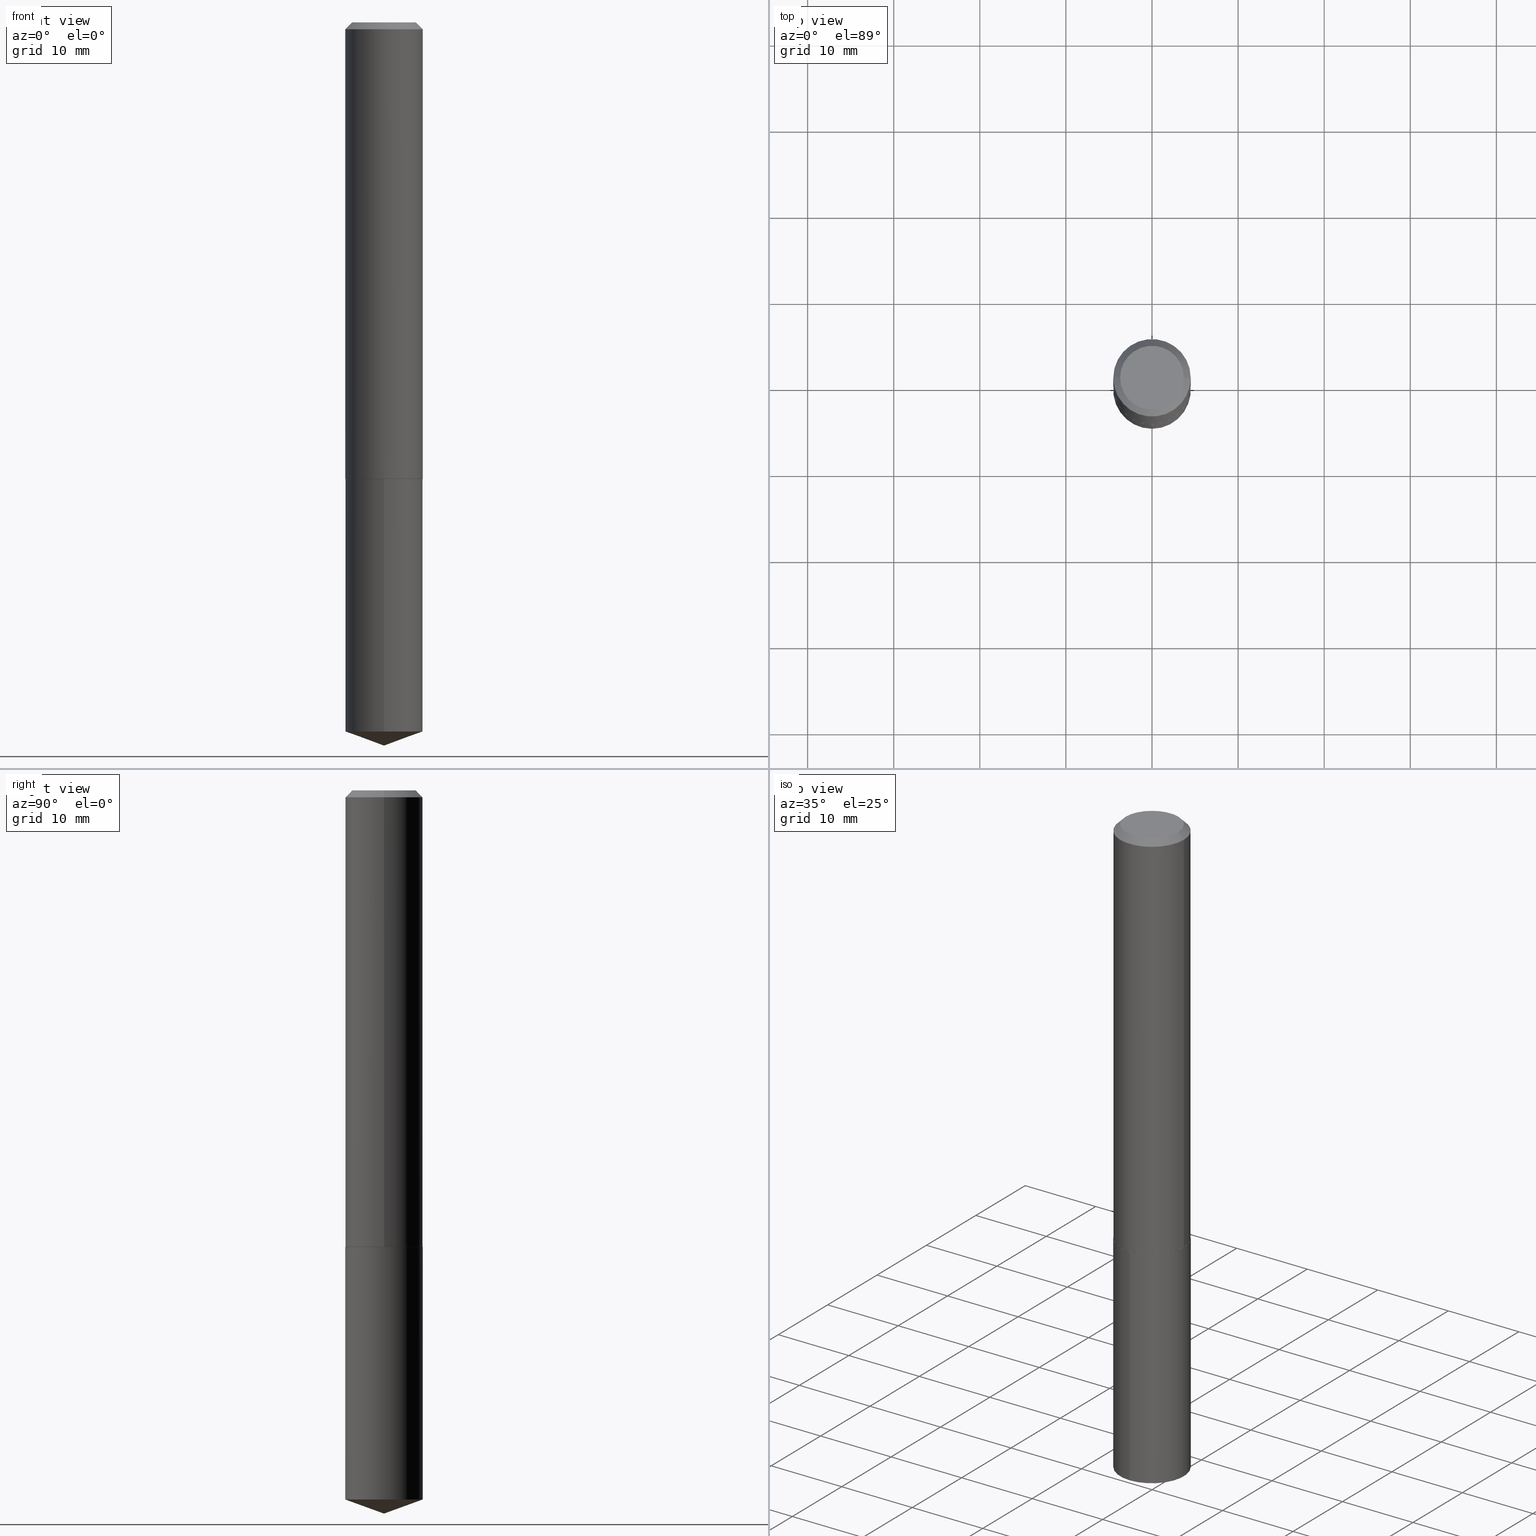
[diagram: canonical four-view strip — front | top / right | iso, engineering-drawing reading convention]
A machine part, canonical four-view strip (front | top / right | iso — engineering-drawing reading convention). The complete STEP part file that produces these views, byte-faithful:
ISO-10303-21;
HEADER;
FILE_DESCRIPTION (( 'STEP AP203' ),
    '1' );
FILE_NAME ('66032.STEP',
    '2024-04-23T12:34:46',
    ( '' ),
    ( '' ),
    'SwSTEP 2.0',
    'SolidWorks 2023',
    '' );
FILE_SCHEMA (( 'CONFIG_CONTROL_DESIGN' ));
ENDSEC;

DATA;
#1 = APPROVAL_STATUS ( 'not_yet_approved' ) ;
#2 = PERSON_AND_ORGANIZATION_ROLE ( 'classification_officer' ) ;
#3 = CC_DESIGN_PERSON_AND_ORGANIZATION_ASSIGNMENT ( #327, #268, ( #77 ) ) ;
#4 = CIRCLE ( 'NONE', #102, 0.1771500000000000019 ) ;
#5 = ORIENTED_EDGE ( 'NONE', *, *, #134, .T. ) ;
#6 = EDGE_LOOP ( 'NONE', ( #118, #58, #249, #326 ) ) ;
#7 = ADVANCED_BREP_SHAPE_REPRESENTATION ( '66032', ( #373, #106, #78 ), #237 ) ;
#8 = DIRECTION ( 'NONE',  ( -0.7071067811865454633, 2.468850131082235367E-15, -0.7071067811865495711 ) ) ;
#9 = ORIENTED_EDGE ( 'NONE', *, *, #333, .F. ) ;
#10 = ORIENTED_EDGE ( 'NONE', *, *, #264, .F. ) ;
#11 = EDGE_CURVE ( 'NONE', #368, #219, #149, .T. ) ;
#12 = CARTESIAN_POINT ( 'NONE',  ( 5.101492476582815716E-29, -7.283579220960688279E-15, -2.086100000000000954 ) ) ;
#13 = DATE_AND_TIME ( #189, #242 ) ;
#14 = DIRECTION ( 'NONE',  ( -2.445468806185136597E-29, 3.491481338843145583E-15, 1.000000000000000000 ) ) ;
#15 = AXIS2_PLACEMENT_3D ( 'NONE', #224, #127, #377 ) ;
#16 = DIRECTION ( 'NONE',  ( 1.000000000000000000, 0.000000000000000000, 0.000000000000000000 ) ) ;
#17 = CARTESIAN_POINT ( 'NONE',  ( 5.102715210985907397E-29, -7.285324961630108994E-15, -2.086600000000000676 ) ) ;
#18 = APPLICATION_PROTOCOL_DEFINITION ( 'international standard', 'config_control_design', 1994, #284 ) ;
#19 = DIRECTION ( 'NONE',  ( -2.445468806185136597E-29, 3.491481338843145583E-15, 1.000000000000000000 ) ) ;
#20 = LINE ( 'NONE', #349, #279 ) ;
#21 = DIRECTION ( 'NONE',  ( -2.445771156139322232E-29, 3.491048356500061313E-15, 1.000000000000000000 ) ) ;
#22 = AXIS2_PLACEMENT_3D ( 'NONE', #12, #14, #378 ) ;
#23 = CARTESIAN_POINT ( 'NONE',  ( -1.237031838352043113E-15, -0.1771500000000113817, -3.242622672999742051 ) ) ;
#24 = DATE_AND_TIME ( #330, #111 ) ;
#25 = EDGE_CURVE ( 'NONE', #243, #303, #69, .T. ) ;
#26 = CARTESIAN_POINT ( 'NONE',  ( 0.000000000000000000, 0.000000000000000000, 0.000000000000000000 ) ) ;
#27 = DIRECTION ( 'NONE',  ( 1.000000000000000000, -6.982962677686263555E-15, 0.000000000000000000 ) ) ;
#28 = AXIS2_PLACEMENT_3D ( 'NONE', #289, #225, #131 ) ;
#29 = CC_DESIGN_APPROVAL ( #214, ( #77 ) ) ;
#30 = EDGE_CURVE ( 'NONE', #334, #215, #339, .T. ) ;
#31 = DATE_AND_TIME ( #324, #306 ) ;
#32 = VERTEX_POINT ( 'NONE', #309 ) ;
#33 = ORIENTED_EDGE ( 'NONE', *, *, #30, .F. ) ;
#34 = ORIENTED_EDGE ( 'NONE', *, *, #258, .F. ) ;
#35 = EDGE_LOOP ( 'NONE', ( #178, #300, #34, #236 ) ) ;
#36 = ORIENTED_EDGE ( 'NONE', *, *, #244, .T. ) ;
#37 = CIRCLE ( 'NONE', #185, 0.1459000000000000019 ) ;
#38 = DIRECTION ( 'NONE',  ( 0.7071067811869580222, -2.468850131086556747E-15, 0.7071067811861370123 ) ) ;
#39 = PERSON_AND_ORGANIZATION ( #91, #174 ) ;
#40 = LINE ( 'NONE', #158, #247 ) ;
#41 = DIRECTION ( 'NONE',  ( -2.445771156139322232E-29, 3.491048356500061313E-15, 1.000000000000000000 ) ) ;
#42 = CARTESIAN_POINT ( 'NONE',  ( 0.1771500000000000019, -1.346140630190971297E-15, -0.03125000000000019429 ) ) ;
#43 = FACE_OUTER_BOUND ( 'NONE', #250, .T. ) ;
#44 = CARTESIAN_POINT ( 'NONE',  ( -0.1766500000000002790, -6.027501991735779424E-15, -2.086600000000000232 ) ) ;
#45 = DATE_AND_TIME ( #233, #248 ) ;
#46 = VECTOR ( 'NONE', #103, 39.37007874015747433 ) ;
#47 = DIRECTION ( 'NONE',  ( -2.445771156139322232E-29, 3.491048356500061313E-15, 1.000000000000000000 ) ) ;
#48 = VERTEX_POINT ( 'NONE', #66 ) ;
#49 = CARTESIAN_POINT ( 'NONE',  ( -0.1771500000000001129, 1.258726456399018282E-15, -8.713893512386570931E-30 ) ) ;
#50 = COORDINATED_UNIVERSAL_TIME_OFFSET ( 5, 0, .BEHIND. ) ;
#51 = COORDINATED_UNIVERSAL_TIME_OFFSET ( 5, 0, .BEHIND. ) ;
#52 = AXIS2_PLACEMENT_3D ( 'NONE', #341, #133, #156 ) ;
#53 = ORIENTED_EDGE ( 'NONE', *, *, #55, .T. ) ;
#54 = ORIENTED_EDGE ( 'NONE', *, *, #97, .F. ) ;
#55 = EDGE_CURVE ( 'NONE', #123, #203, #342, .T. ) ;
#56 = VECTOR ( 'NONE', #8, 39.37007874015748143 ) ;
#57 = CIRCLE ( 'NONE', #186, 0.1771500000000000019 ) ;
#58 = ORIENTED_EDGE ( 'NONE', *, *, #375, .T. ) ;
#59 = CARTESIAN_POINT ( 'NONE',  ( 8.087148023639544931E-29, -1.154705294169551217E-14, -3.307100000000000151 ) ) ;
#60 = VERTEX_POINT ( 'NONE', #42 ) ;
#61 = PRODUCT_DEFINITION ( 'UNKNOWN', '', #77, #206 ) ;
#62 = DIRECTION ( 'NONE',  ( -2.445771156139322512E-29, 3.491048356500061707E-15, 1.000000000000000000 ) ) ;
#63 = PERSON_AND_ORGANIZATION_ROLE ( 'design_owner' ) ;
#64 = DIRECTION ( 'NONE',  ( -2.445771156139322232E-29, 3.491048356500061313E-15, 1.000000000000000000 ) ) ;
#65 = DIRECTION ( 'NONE',  ( -2.445771156139322512E-29, 3.491048356500061707E-15, 1.000000000000000000 ) ) ;
#66 = CARTESIAN_POINT ( 'NONE',  ( 1.258726456399097168E-15, 0.1771499999999887054, -3.242622672999742939 ) ) ;
#67 = DIRECTION ( 'NONE',  ( 2.445468806185136597E-29, -3.491481338843145583E-15, -1.000000000000000000 ) ) ;
#68 = DIRECTION ( 'NONE',  ( -1.000000000000000000, 6.982962677686266711E-15, 0.000000000000000000 ) ) ;
#69 = CIRCLE ( 'NONE', #167, 0.1766500000000002790 ) ;
#70 = APPROVAL_DATE_TIME ( #13, #251 ) ;
#71 = DIRECTION ( 'NONE',  ( -2.445771156139322232E-29, 3.491048356500061313E-15, 1.000000000000000000 ) ) ;
#72 = DIRECTION ( 'NONE',  ( -2.445468806185136597E-29, 3.491481338843145583E-15, 1.000000000000000000 ) ) ;
#73 = CARTESIAN_POINT ( 'NONE',  ( 5.101492476582815716E-29, -7.283579220960688279E-15, -2.086100000000000954 ) ) ;
#74 = ADVANCED_FACE ( 'NONE', ( #192 ), #92, .F. ) ;
#75 = DIRECTION ( 'NONE',  ( 1.000000000000000000, -6.982962677686266711E-15, 4.876176775795935793E-29 ) ) ;
#76 = CIRCLE ( 'NONE', #370, 0.1459000000000000019 ) ;
#77 = PRODUCT_DEFINITION_FORMATION_WITH_SPECIFIED_SOURCE ( 'ANY', '', #200, .NOT_KNOWN. ) ;
#78 = AXIS2_PLACEMENT_3D ( 'NONE', #344, #287, #16 ) ;
#79 = PLANE ( 'NONE',  #261 ) ;
#80 = ORIENTED_EDGE ( 'NONE', *, *, #11, .T. ) ;
#81 = PERSON_AND_ORGANIZATION ( #91, #174 ) ;
#82 = DATE_TIME_ROLE ( 'creation_date' ) ;
#83 = VECTOR ( 'NONE', #234, 39.37007874015748143 ) ;
#84 = VERTEX_POINT ( 'NONE', #196 ) ;
#85 = ADVANCED_FACE ( 'NONE', ( #43 ), #286, .T. ) ;
#86 = ORIENTED_EDGE ( 'NONE', *, *, #258, .T. ) ;
#87 = ORIENTED_EDGE ( 'NONE', *, *, #97, .T. ) ;
#88 = DIRECTION ( 'NONE',  ( 1.000000000000000000, -6.982962677686264344E-15, 0.000000000000000000 ) ) ;
#89 = ADVANCED_FACE ( 'NONE', ( #125 ), #374, .T. ) ;
#90 = ORIENTED_EDGE ( 'NONE', *, *, #188, .F. ) ;
#91 = PERSON ( 'UNSPECIFIED', 'UNSPECIFIED', 'UNSPECIFIED', ('UNSPECIFIED'), ('UNSPECIFIED'), ('UNSPECIFIED') ) ;
#92 = PLANE ( 'NONE',  #359 ) ;
#93 = DIRECTION ( 'NONE',  ( -2.445468806185136597E-29, 3.491481338843145583E-15, 1.000000000000000000 ) ) ;
#94 = CONICAL_SURFACE ( 'NONE', #122, 0.1771500000000000019, 0.7853981633974453924 ) ;
#95 = CARTESIAN_POINT ( 'NONE',  ( 7.642090019328598283E-31, -1.091087918388489651E-16, -0.03125000000000019429 ) ) ;
#96 = FACE_OUTER_BOUND ( 'NONE', #35, .T. ) ;
#97 = EDGE_CURVE ( 'NONE', #84, #60, #252, .T. ) ;
#98 = CARTESIAN_POINT ( 'NONE',  ( 7.642090019328598283E-31, -1.091087918388489651E-16, -0.03125000000000019429 ) ) ;
#99 = CARTESIAN_POINT ( 'NONE',  ( 5.102715210985907397E-29, -7.285324961630108994E-15, -2.086600000000000676 ) ) ;
#100 = LENGTH_MEASURE_WITH_UNIT ( LENGTH_MEASURE( 0.02539999999999999897 ), #283 );
#101 = CARTESIAN_POINT ( 'NONE',  ( 0.1771500000000001129, -1.237031838352122986E-15, 8.638147158322505565E-30 ) ) ;
#102 = AXIS2_PLACEMENT_3D ( 'NONE', #99, #71, #199 ) ;
#103 = DIRECTION ( 'NONE',  ( 6.676917655467966551E-15, 0.9396926207859094271, 0.3420201433256662149 ) ) ;
#104 = EDGE_CURVE ( 'NONE', #303, #32, #376, .T. ) ;
#105 = FACE_OUTER_BOUND ( 'NONE', #179, .T. ) ;
#106 = MANIFOLD_SOLID_BREP ( 'Body-Move/Copy2[2]', #144 ) ;
#107 = DIRECTION ( 'NONE',  ( 1.000000000000000000, -6.982962677686263555E-15, 0.000000000000000000 ) ) ;
#108 = CALENDAR_DATE ( 2024, 23, 4 ) ;
#109 = CARTESIAN_POINT ( 'NONE',  ( -1.474956506360344439E-47, 2.105846987104261168E-33, 6.031385485800719294E-19 ) ) ;
#110 = VECTOR ( 'NONE', #221, 39.37007874015748143 ) ;
#111 = LOCAL_TIME ( 8, 34, 46.00000000000000000, #175 ) ;
#112 = ORIENTED_EDGE ( 'NONE', *, *, #113, .T. ) ;
#113 = EDGE_CURVE ( 'NONE', #151, #368, #76, .T. ) ;
#114 = PERSON_AND_ORGANIZATION_ROLE ( 'creator' ) ;
#115 = AXIS2_PLACEMENT_3D ( 'NONE', #73, #165, #27 ) ;
#116 = ADVANCED_FACE ( 'NONE', ( #380 ), #382, .T. ) ;
#117 = APPROVAL_PERSON_ORGANIZATION ( #132, #251, #228 ) ;
#118 = ORIENTED_EDGE ( 'NONE', *, *, #113, .F. ) ;
#119 = ORIENTED_EDGE ( 'NONE', *, *, #55, .F. ) ;
#120 = ORIENTED_EDGE ( 'NONE', *, *, #371, .F. ) ;
#121 = CIRCLE ( 'NONE', #28, 0.1771500000000000019 ) ;
#122 = AXIS2_PLACEMENT_3D ( 'NONE', #95, #67, #381 ) ;
#123 = VERTEX_POINT ( 'NONE', #129 ) ;
#124 = EDGE_LOOP ( 'NONE', ( #33, #275, #120 ) ) ;
#125 = FACE_OUTER_BOUND ( 'NONE', #335, .T. ) ;
#126 = DIMENSIONAL_EXPONENTS ( 1.000000000000000000, 0.000000000000000000, 0.000000000000000000, 0.000000000000000000, 0.000000000000000000, 0.000000000000000000, 0.000000000000000000 ) ;
#127 = DIRECTION ( 'NONE',  ( -2.445771156139322232E-29, 3.491048356500061313E-15, 1.000000000000000000 ) ) ;
#128 = EDGE_CURVE ( 'NONE', #48, #215, #157, .T. ) ;
#129 = CARTESIAN_POINT ( 'NONE',  ( -1.237031838352071118E-15, -0.1771500000000073016, -2.086600000000000232 ) ) ;
#130 = APPROVAL_PERSON_ORGANIZATION ( #177, #214, #207 ) ;
#131 = DIRECTION ( 'NONE',  ( 1.000000000000000000, -6.982962677686266711E-15, 0.000000000000000000 ) ) ;
#132 = PERSON_AND_ORGANIZATION ( #91, #174 ) ;
#133 = DIRECTION ( 'NONE',  ( -2.445771156139322232E-29, 3.491048356500061313E-15, 1.000000000000000000 ) ) ;
#134 = EDGE_CURVE ( 'NONE', #48, #203, #223, .T. ) ;
#135 = LINE ( 'NONE', #347, #343 ) ;
#136 = DIRECTION ( 'NONE',  ( -6.982962677686265922E-15, -1.000000000000000000, 3.084220145260246224E-15 ) ) ;
#137 = CIRCLE ( 'NONE', #365, 0.1771500000000002240 ) ;
#138 = CC_DESIGN_DATE_AND_TIME_ASSIGNMENT ( #45, #239, ( #168 ) ) ;
#139 = DIRECTION ( 'NONE',  ( -1.000000000000000000, 6.982962677686265922E-15, -4.876176775795935793E-29 ) ) ;
#140 = SECURITY_CLASSIFICATION_LEVEL ( 'unclassified' ) ;
#141 = DIRECTION ( 'NONE',  ( -6.982962677686265922E-15, -1.000000000000000000, 3.084220145260246224E-15 ) ) ;
#142 = ORIENTED_EDGE ( 'NONE', *, *, #227, .F. ) ;
#143 = CARTESIAN_POINT ( 'NONE',  ( 5.102715210985906276E-29, -7.285324961630107416E-15, -2.086600000000000232 ) ) ;
#144 = CLOSED_SHELL ( 'NONE', ( #198, #271, #172, #293, #85, #116, #304, #238 ) ) ;
#145 = APPROVAL_STATUS ( 'not_yet_approved' ) ;
#146 = ORIENTED_EDGE ( 'NONE', *, *, #128, .F. ) ;
#147 = AXIS2_PLACEMENT_3D ( 'NONE', #17, #64, #317 ) ;
#148 = ORIENTED_EDGE ( 'NONE', *, *, #176, .F. ) ;
#149 = LINE ( 'NONE', #276, #56 ) ;
#150 = ADVANCED_FACE ( 'NONE', ( #255 ), #153, .T. ) ;
#151 = VERTEX_POINT ( 'NONE', #345 ) ;
#152 = PRODUCT_DEFINITION_SHAPE ( 'NONE', 'NONE',  #61 ) ;
#153 = CONICAL_SURFACE ( 'NONE', #278, 108.1684023407329107, 1.221730476396029941 ) ;
#154 = ORIENTED_EDGE ( 'NONE', *, *, #227, .T. ) ;
#155 = DIRECTION ( 'NONE',  ( 1.000000000000000000, -6.982962677686263555E-15, 0.000000000000000000 ) ) ;
#156 = DIRECTION ( 'NONE',  ( -6.982962677686265922E-15, -1.000000000000000000, 3.084220145260246224E-15 ) ) ;
#157 = CIRCLE ( 'NONE', #52, 0.1771500000000000019 ) ;
#158 = CARTESIAN_POINT ( 'NONE',  ( 0.1771500000000002240, -8.520611059312812251E-15, -2.086100000000000954 ) ) ;
#159 = CC_DESIGN_APPROVAL ( #310, ( #168 ) ) ;
#160 = MECHANICAL_CONTEXT ( 'NONE', #193, 'mechanical' ) ;
#161 = DIRECTION ( 'NONE',  ( -2.445468806185136597E-29, 3.491481338843145583E-15, 1.000000000000000000 ) ) ;
#162 = EDGE_CURVE ( 'NONE', #243, #84, #40, .T. ) ;
#163 = DIRECTION ( 'NONE',  ( -6.982962677686265922E-15, -1.000000000000000000, 3.084220145260246224E-15 ) ) ;
#164 = DIRECTION ( 'NONE',  ( 1.000000000000000000, -6.982962677686266711E-15, 4.876233736924995224E-29 ) ) ;
#165 = DIRECTION ( 'NONE',  ( -2.445468806185136597E-29, 3.491481338843145583E-15, 1.000000000000000000 ) ) ;
#166 = ORIENTED_EDGE ( 'NONE', *, *, #162, .T. ) ;
#167 = AXIS2_PLACEMENT_3D ( 'NONE', #246, #369, #88 ) ;
#168 = SECURITY_CLASSIFICATION ( '', '', #140 ) ;
#169 = APPROVAL_ROLE ( '' ) ;
#170 = DIRECTION ( 'NONE',  ( -2.445468806185136597E-29, 3.491481338843145583E-15, 1.000000000000000000 ) ) ;
#171 = ORIENTED_EDGE ( 'NONE', *, *, #364, .F. ) ;
#172 = ADVANCED_FACE ( 'NONE', ( #96 ), #195, .T. ) ;
#173 = FACE_OUTER_BOUND ( 'NONE', #305, .T. ) ;
#174 = ORGANIZATION ( 'UNSPECIFIED', 'UNSPECIFIED', '' ) ;
#175 = COORDINATED_UNIVERSAL_TIME_OFFSET ( 5, 0, .BEHIND. ) ;
#176 = EDGE_CURVE ( 'NONE', #219, #60, #121, .T. ) ;
#177 = PERSON_AND_ORGANIZATION ( #91, #174 ) ;
#178 = ORIENTED_EDGE ( 'NONE', *, *, #25, .T. ) ;
#179 = EDGE_LOOP ( 'NONE', ( #272, #5, #119, #361 ) ) ;
#180 = VECTOR ( 'NONE', #315, 39.37007874015748143 ) ;
#181 = AXIS2_PLACEMENT_3D ( 'NONE', #325, #47, #141 ) ;
#182 = EDGE_LOOP ( 'NONE', ( #336, #245, #87, #148 ) ) ;
#183 = DIRECTION ( 'NONE',  ( -6.561838499445199274E-15, -0.9396926207859068736, 0.3420201433256727097 ) ) ;
#184 = ORIENTED_EDGE ( 'NONE', *, *, #220, .T. ) ;
#185 = AXIS2_PLACEMENT_3D ( 'NONE', #388, #170, #328 ) ;
#186 = AXIS2_PLACEMENT_3D ( 'NONE', #231, #260, #163 ) ;
#187 = DIRECTION ( 'NONE',  ( -6.982962677686266711E-15, -1.000000000000000000, 3.475157955500737963E-15 ) ) ;
#188 = EDGE_CURVE ( 'NONE', #203, #123, #4, .T. ) ;
#189 = CALENDAR_DATE ( 2024, 23, 4 ) ;
#190 = CARTESIAN_POINT ( 'NONE',  ( -8.820242409055716223E-28, 1.258966992003663468E-13, 36.06297874015748306 ) ) ;
#191 = DIRECTION ( 'NONE',  ( 1.000000000000000000, -6.982962677686266711E-15, 0.000000000000000000 ) ) ;
#192 = FACE_OUTER_BOUND ( 'NONE', #216, .T. ) ;
#193 = APPLICATION_CONTEXT ( 'configuration controlled 3d designs of mechanical parts and assemblies' ) ;
#194 = DIRECTION ( 'NONE',  ( 0.7071067811865454633, -7.319954787623248157E-15, -0.7071067811865495711 ) ) ;
#195 = CONICAL_SURFACE ( 'NONE', #22, 0.1771500000000002240, 0.7853981633980288146 ) ;
#196 = CARTESIAN_POINT ( 'NONE',  ( 0.1771500000000002240, -8.520611059312812251E-15, -2.086100000000000954 ) ) ;
#197 = PERSON_AND_ORGANIZATION ( #91, #174 ) ;
#198 = ADVANCED_FACE ( 'NONE', ( #226 ), #384, .T. ) ;
#199 = DIRECTION ( 'NONE',  ( -6.982962677686265922E-15, -1.000000000000000000, 3.084220145260246224E-15 ) ) ;
#200 = PRODUCT ( '66032', '66032', '', ( #160 ) ) ;
#201 =( NAMED_UNIT ( * ) PLANE_ANGLE_UNIT ( ) SI_UNIT ( $, .RADIAN. ) );
#202 = DIRECTION ( 'NONE',  ( -2.438088387897960049E-29, 3.491481338843145188E-15, 1.000000000000000000 ) ) ;
#203 = VERTEX_POINT ( 'NONE', #318 ) ;
#204 = CYLINDRICAL_SURFACE ( 'NONE', #181, 0.1771500000000000019 ) ;
#205 = ORIENTED_EDGE ( 'NONE', *, *, #362, .T. ) ;
#206 = DESIGN_CONTEXT ( 'detailed design', #284, 'design' ) ;
#207 = APPROVAL_ROLE ( '' ) ;
#208 = DIRECTION ( 'NONE',  ( 2.438088387897960049E-29, -3.491481338843145188E-15, -1.000000000000000000 ) ) ;
#209 = ORIENTED_EDGE ( 'NONE', *, *, #30, .T. ) ;
#210 = PERSON_AND_ORGANIZATION ( #91, #174 ) ;
#211 = AXIS2_PLACEMENT_3D ( 'NONE', #143, #357, #235 ) ;
#212 = APPROVAL_PERSON_ORGANIZATION ( #81, #310, #169 ) ;
#213 = APPROVAL_DATE_TIME ( #363, #310 ) ;
#214 = APPROVAL ( #145, 'UNSPECIFIED' ) ;
#215 = VERTEX_POINT ( 'NONE', #23 ) ;
#216 = EDGE_LOOP ( 'NONE', ( #53, #372 ) ) ;
#217 = ORIENTED_EDGE ( 'NONE', *, *, #134, .F. ) ;
#218 = ORIENTED_EDGE ( 'NONE', *, *, #220, .F. ) ;
#219 = VERTEX_POINT ( 'NONE', #360 ) ;
#220 = EDGE_CURVE ( 'NONE', #303, #243, #331, .T. ) ;
#221 = DIRECTION ( 'NONE',  ( -0.7071067811869580222, 7.493145998871837219E-15, 0.7071067811861370123 ) ) ;
#222 = CC_DESIGN_SECURITY_CLASSIFICATION ( #168, ( #77 ) ) ;
#223 = LINE ( 'NONE', #282, #269 ) ;
#224 = CARTESIAN_POINT ( 'NONE',  ( -8.820242409055716223E-28, 1.258966992003663468E-13, 36.06297874015748306 ) ) ;
#225 = DIRECTION ( 'NONE',  ( -2.445468806185136597E-29, 3.491481338843145583E-15, 1.000000000000000000 ) ) ;
#226 = FACE_OUTER_BOUND ( 'NONE', #6, .T. ) ;
#227 = EDGE_CURVE ( 'NONE', #368, #151, #37, .T. ) ;
#228 = APPROVAL_ROLE ( '' ) ;
#229 = AXIS2_PLACEMENT_3D ( 'NONE', #348, #21, #136 ) ;
#230 = DIRECTION ( 'NONE',  ( 1.000000000000000000, -6.982962677686266711E-15, 4.876176775795935793E-29 ) ) ;
#231 = CARTESIAN_POINT ( 'NONE',  ( 7.930082120451756435E-29, -1.132105601428266761E-14, -3.242622672999742495 ) ) ;
#232 = CARTESIAN_POINT ( 'NONE',  ( 0.1766500000000002790, -8.518865318643388381E-15, -2.086600000000000232 ) ) ;
#233 = CALENDAR_DATE ( 2024, 23, 4 ) ;
#234 = DIRECTION ( 'NONE',  ( -2.445468806185136877E-29, 3.491481338843145188E-15, 1.000000000000000000 ) ) ;
#235 = DIRECTION ( 'NONE',  ( 1.000000000000000000, -6.982962677686264344E-15, 0.000000000000000000 ) ) ;
#236 = ORIENTED_EDGE ( 'NONE', *, *, #162, .F. ) ;
#237 =( GEOMETRIC_REPRESENTATION_CONTEXT ( 3 ) GLOBAL_UNCERTAINTY_ASSIGNED_CONTEXT ( ( #358 ) ) GLOBAL_UNIT_ASSIGNED_CONTEXT ( ( #385, #201, #379 ) ) REPRESENTATION_CONTEXT ( 'NONE', 'WORKASPACE' ) );
#238 = ADVANCED_FACE ( 'NONE', ( #173 ), #79, .F. ) ;
#239 = DATE_TIME_ROLE ( 'classification_date' ) ;
#240 = CC_DESIGN_PERSON_AND_ORGANIZATION_ASSIGNMENT ( #197, #319, ( #61 ) ) ;
#241 = AXIS2_PLACEMENT_3D ( 'NONE', #354, #350, #68 ) ;
#242 = LOCAL_TIME ( 8, 34, 46.00000000000000000, #352 ) ;
#243 = VERTEX_POINT ( 'NONE', #232 ) ;
#244 = EDGE_CURVE ( 'NONE', #32, #219, #265, .T. ) ;
#245 = ORIENTED_EDGE ( 'NONE', *, *, #264, .T. ) ;
#246 = CARTESIAN_POINT ( 'NONE',  ( 5.102715210985906276E-29, -7.285324961630107416E-15, -2.086600000000000232 ) ) ;
#247 = VECTOR ( 'NONE', #38, 39.37007874015748143 ) ;
#248 = LOCAL_TIME ( 8, 34, 46.00000000000000000, #51 ) ;
#249 = ORIENTED_EDGE ( 'NONE', *, *, #364, .T. ) ;
#250 = EDGE_LOOP ( 'NONE', ( #340, #184, #166, #10 ) ) ;
#251 = APPROVAL ( #256, 'UNSPECIFIED' ) ;
#252 = LINE ( 'NONE', #101, #180 ) ;
#253 = LINE ( 'NONE', #314, #46 ) ;
#254 = CLOSED_SHELL ( 'NONE', ( #274, #346, #150, #89, #74 ) ) ;
#255 = FACE_OUTER_BOUND ( 'NONE', #329, .T. ) ;
#256 = APPROVAL_STATUS ( 'not_yet_approved' ) ;
#257 = CARTESIAN_POINT ( 'NONE',  ( 5.101492476582815716E-29, -7.283579220960688279E-15, -2.086100000000000954 ) ) ;
#258 = EDGE_CURVE ( 'NONE', #84, #32, #137, .T. ) ;
#259 = CARTESIAN_POINT ( 'NONE',  ( 5.102715210985907397E-29, -7.285324961630108994E-15, -2.086600000000000676 ) ) ;
#260 = DIRECTION ( 'NONE',  ( -2.445771156139322232E-29, 3.491048356500061313E-15, 1.000000000000000000 ) ) ;
#261 = AXIS2_PLACEMENT_3D ( 'NONE', #109, #208, #139 ) ;
#262 = FACE_OUTER_BOUND ( 'NONE', #311, .T. ) ;
#263 = FACE_OUTER_BOUND ( 'NONE', #298, .T. ) ;
#264 = EDGE_CURVE ( 'NONE', #32, #84, #295, .T. ) ;
#265 = LINE ( 'NONE', #49, #83 ) ;
#266 = PERSON_AND_ORGANIZATION ( #91, #174 ) ;
#267 = FACE_OUTER_BOUND ( 'NONE', #308, .T. ) ;
#268 = PERSON_AND_ORGANIZATION_ROLE ( 'design_supplier' ) ;
#269 = VECTOR ( 'NONE', #62, 39.37007874015748143 ) ;
#270 = AXIS2_PLACEMENT_3D ( 'NONE', #26, #386, #75 ) ;
#271 = ADVANCED_FACE ( 'NONE', ( #262 ), #296, .T. ) ;
#272 = ORIENTED_EDGE ( 'NONE', *, *, #371, .T. ) ;
#273 = CIRCLE ( 'NONE', #297, 0.1771500000000000019 ) ;
#274 = ADVANCED_FACE ( 'NONE', ( #105 ), #204, .T. ) ;
#275 = ORIENTED_EDGE ( 'NONE', *, *, #333, .T. ) ;
#276 = CARTESIAN_POINT ( 'NONE',  ( -0.1771500000000000019, 1.127923046513273096E-15, -0.03125000000000019429 ) ) ;
#277 = ORIENTED_EDGE ( 'NONE', *, *, #128, .T. ) ;
#278 = AXIS2_PLACEMENT_3D ( 'NONE', #190, #41, #187 ) ;
#279 = VECTOR ( 'NONE', #194, 39.37007874015748143 ) ;
#280 = ORIENTED_EDGE ( 'NONE', *, *, #375, .F. ) ;
#281 = CC_DESIGN_PERSON_AND_ORGANIZATION_ASSIGNMENT ( #210, #114, ( #77 ) ) ;
#282 = CARTESIAN_POINT ( 'NONE',  ( 1.258726456399068374E-15, 0.1771499999999927299, -2.086600000000001121 ) ) ;
#283 =( LENGTH_UNIT ( ) NAMED_UNIT ( * ) SI_UNIT ( $, .METRE. ) );
#284 = APPLICATION_CONTEXT ( 'configuration controlled 3d designs of mechanical parts and assemblies' ) ;
#285 = CARTESIAN_POINT ( 'NONE',  ( -0.1771500000000002240, -6.024852764561670589E-15, -2.086100000000000954 ) ) ;
#286 = CONICAL_SURFACE ( 'NONE', #312, 0.1771500000000002240, 0.7853981633980288146 ) ;
#287 = DIRECTION ( 'NONE',  ( 0.000000000000000000, 0.000000000000000000, 1.000000000000000000 ) ) ;
#288 = CC_DESIGN_APPROVAL ( #251, ( #61 ) ) ;
#289 = CARTESIAN_POINT ( 'NONE',  ( 7.642090019328598283E-31, -1.091087918388489651E-16, -0.03125000000000019429 ) ) ;
#290 = CARTESIAN_POINT ( 'NONE',  ( 8.088409790468352697E-29, -1.154524601978135254E-14, -3.307100000000000151 ) ) ;
#291 = CARTESIAN_POINT ( 'NONE',  ( -2.949913012720688878E-47, 4.211693974208522336E-33, 1.206277097160143859E-18 ) ) ;
#292 = CARTESIAN_POINT ( 'NONE',  ( 0.000000000000000000, 0.000000000000000000, 0.000000000000000000 ) ) ;
#293 = ADVANCED_FACE ( 'NONE', ( #267 ), #390, .F. ) ;
#294 = APPLICATION_PROTOCOL_DEFINITION ( 'international standard', 'config_control_design', 1994, #193 ) ;
#295 = CIRCLE ( 'NONE', #115, 0.1771500000000002240 ) ;
#296 = CYLINDRICAL_SURFACE ( 'NONE', #270, 0.1771500000000001129 ) ;
#297 = AXIS2_PLACEMENT_3D ( 'NONE', #98, #72, #191 ) ;
#298 = EDGE_LOOP ( 'NONE', ( #280, #142, #80, #323 ) ) ;
#299 = CARTESIAN_POINT ( 'NONE',  ( 5.101492476582815716E-29, -7.283579220960688279E-15, -2.086100000000000954 ) ) ;
#300 = ORIENTED_EDGE ( 'NONE', *, *, #104, .T. ) ;
#301 = SHAPE_DEFINITION_REPRESENTATION ( #152, #7 ) ;
#302 = DIRECTION ( 'NONE',  ( -2.445468806185136597E-29, 3.491481338843145583E-15, 1.000000000000000000 ) ) ;
#303 = VERTEX_POINT ( 'NONE', #44 ) ;
#304 = ADVANCED_FACE ( 'NONE', ( #263 ), #94, .T. ) ;
#305 = EDGE_LOOP ( 'NONE', ( #154, #112 ) ) ;
#306 = LOCAL_TIME ( 8, 34, 46.00000000000000000, #50 ) ;
#307 = AXIS2_PLACEMENT_3D ( 'NONE', #356, #202, #321 ) ;
#308 = EDGE_LOOP ( 'NONE', ( #367, #218 ) ) ;
#309 = CARTESIAN_POINT ( 'NONE',  ( -0.1771500000000002240, -6.024852764561670589E-15, -2.086100000000000954 ) ) ;
#310 = APPROVAL ( #1, 'UNSPECIFIED' ) ;
#311 = EDGE_LOOP ( 'NONE', ( #86, #36, #171, #54 ) ) ;
#312 = AXIS2_PLACEMENT_3D ( 'NONE', #257, #161, #155 ) ;
#313 = DIRECTION ( 'NONE',  ( 2.445771156139321391E-29, -3.491048356500061707E-15, -1.000000000000000000 ) ) ;
#314 = CARTESIAN_POINT ( 'NONE',  ( 8.088420854674045306E-29, -1.154524601978135254E-14, -3.307100000000000151 ) ) ;
#315 = DIRECTION ( 'NONE',  ( -2.445468806185136877E-29, 3.491481338843145188E-15, 1.000000000000000000 ) ) ;
#316 = CARTESIAN_POINT ( 'NONE',  ( -0.1459000000000000019, 1.073368650593849729E-15, 1.206277097152828214E-18 ) ) ;
#317 = DIRECTION ( 'NONE',  ( -6.982962677686265922E-15, -1.000000000000000000, 3.084220145260246224E-15 ) ) ;
#318 = CARTESIAN_POINT ( 'NONE',  ( 1.258726456399096971E-15, 0.1771499999999927299, -2.086600000000001121 ) ) ;
#319 = PERSON_AND_ORGANIZATION_ROLE ( 'creator' ) ;
#320 = DIRECTION ( 'NONE',  ( 6.982962677686265922E-15, 1.000000000000000000, -3.491048356500061707E-15 ) ) ;
#321 = DIRECTION ( 'NONE',  ( 1.000000000000000000, -6.982962677686265922E-15, 4.876176775795935793E-29 ) ) ;
#322 = PRODUCT_RELATED_PRODUCT_CATEGORY ( 'detail', '', ( #200 ) ) ;
#323 = ORIENTED_EDGE ( 'NONE', *, *, #176, .T. ) ;
#324 = CALENDAR_DATE ( 2024, 23, 4 ) ;
#325 = CARTESIAN_POINT ( 'NONE',  ( 5.102715210985907397E-29, -7.285324961630108994E-15, -2.086600000000000676 ) ) ;
#326 = ORIENTED_EDGE ( 'NONE', *, *, #11, .F. ) ;
#327 = PERSON_AND_ORGANIZATION ( #91, #174 ) ;
#328 = DIRECTION ( 'NONE',  ( 1.000000000000000000, -6.982962677686266711E-15, 4.876233736924995224E-29 ) ) ;
#329 = EDGE_LOOP ( 'NONE', ( #9, #209, #146 ) ) ;
#330 = CALENDAR_DATE ( 2024, 23, 4 ) ;
#331 = CIRCLE ( 'NONE', #211, 0.1766500000000002790 ) ;
#332 = APPROVAL_DATE_TIME ( #31, #214 ) ;
#333 = EDGE_CURVE ( 'NONE', #334, #48, #253, .T. ) ;
#334 = VERTEX_POINT ( 'NONE', #290 ) ;
#335 = EDGE_LOOP ( 'NONE', ( #217, #277, #205, #90 ) ) ;
#336 = ORIENTED_EDGE ( 'NONE', *, *, #244, .F. ) ;
#337 = AXIS2_PLACEMENT_3D ( 'NONE', #292, #19, #230 ) ;
#338 = LOCAL_TIME ( 8, 34, 46.00000000000000000, #389 ) ;
#339 = LINE ( 'NONE', #59, #351 ) ;
#340 = ORIENTED_EDGE ( 'NONE', *, *, #104, .F. ) ;
#341 = CARTESIAN_POINT ( 'NONE',  ( 7.930082120451756435E-29, -1.132105601428266761E-14, -3.242622672999742495 ) ) ;
#342 = CIRCLE ( 'NONE', #229, 0.1771500000000000019 ) ;
#343 = VECTOR ( 'NONE', #65, 39.37007874015748143 ) ;
#344 = CARTESIAN_POINT ( 'NONE',  ( 0.000000000000000000, 0.000000000000000000, 0.000000000000000000 ) ) ;
#345 = CARTESIAN_POINT ( 'NONE',  ( 0.1459000000000000019, -1.162696335009471270E-15, 1.206277097167771312E-18 ) ) ;
#346 = ADVANCED_FACE ( 'NONE', ( #387 ), #353, .T. ) ;
#347 = CARTESIAN_POINT ( 'NONE',  ( -1.237031838352071118E-15, -0.1771500000000073016, -2.086600000000000232 ) ) ;
#348 = CARTESIAN_POINT ( 'NONE',  ( 5.102715210985907397E-29, -7.285324961630108994E-15, -2.086600000000000676 ) ) ;
#349 = CARTESIAN_POINT ( 'NONE',  ( 0.1771500000000000019, -1.324446012144076001E-15, -0.03125000000000019429 ) ) ;
#350 = DIRECTION ( 'NONE',  ( 2.445468806185136597E-29, -3.491481338843145583E-15, -1.000000000000000000 ) ) ;
#351 = VECTOR ( 'NONE', #183, 39.37007874015748854 ) ;
#352 = COORDINATED_UNIVERSAL_TIME_OFFSET ( 5, 0, .BEHIND. ) ;
#353 = CONICAL_SURFACE ( 'NONE', #15, 108.1684023407329107, 1.221730476396029941 ) ;
#354 = CARTESIAN_POINT ( 'NONE',  ( 7.642090019328598283E-31, -1.091087918388489651E-16, -0.03125000000000019429 ) ) ;
#355 = CC_DESIGN_DATE_AND_TIME_ASSIGNMENT ( #24, #82, ( #61 ) ) ;
#356 = CARTESIAN_POINT ( 'NONE',  ( 7.356029717594601047E-29, -4.058450337469425967E-15, -2.086600000000000232 ) ) ;
#357 = DIRECTION ( 'NONE',  ( -2.445468806185136597E-29, 3.491481338843145583E-15, 1.000000000000000000 ) ) ;
#358 = UNCERTAINTY_MEASURE_WITH_UNIT (LENGTH_MEASURE( 1.000000000000000082E-05 ), #385, 'distance_accuracy_value', 'NONE');
#359 = AXIS2_PLACEMENT_3D ( 'NONE', #259, #313, #320 ) ;
#360 = CARTESIAN_POINT ( 'NONE',  ( -0.1771500000000000019, -2.437617550000750605E-15, -0.03125000000000019429 ) ) ;
#361 = ORIENTED_EDGE ( 'NONE', *, *, #362, .F. ) ;
#362 = EDGE_CURVE ( 'NONE', #215, #123, #135, .T. ) ;
#363 = DATE_AND_TIME ( #108, #338 ) ;
#364 = EDGE_CURVE ( 'NONE', #60, #219, #273, .T. ) ;
#365 = AXIS2_PLACEMENT_3D ( 'NONE', #299, #302, #107 ) ;
#366 = CC_DESIGN_PERSON_AND_ORGANIZATION_ASSIGNMENT ( #266, #2, ( #168 ) ) ;
#367 = ORIENTED_EDGE ( 'NONE', *, *, #25, .F. ) ;
#368 = VERTEX_POINT ( 'NONE', #316 ) ;
#369 = DIRECTION ( 'NONE',  ( -2.445468806185136597E-29, 3.491481338843145583E-15, 1.000000000000000000 ) ) ;
#370 = AXIS2_PLACEMENT_3D ( 'NONE', #291, #93, #164 ) ;
#371 = EDGE_CURVE ( 'NONE', #215, #48, #57, .T. ) ;
#372 = ORIENTED_EDGE ( 'NONE', *, *, #188, .T. ) ;
#373 = MANIFOLD_SOLID_BREP ( 'Body-Move/Copy2[1]', #254 ) ;
#374 = CYLINDRICAL_SURFACE ( 'NONE', #147, 0.1771500000000000019 ) ;
#375 = EDGE_CURVE ( 'NONE', #151, #60, #20, .T. ) ;
#376 = LINE ( 'NONE', #285, #110 ) ;
#377 = DIRECTION ( 'NONE',  ( -6.982962677686266711E-15, -1.000000000000000000, 3.475157955500737963E-15 ) ) ;
#378 = DIRECTION ( 'NONE',  ( 1.000000000000000000, -6.982962677686263555E-15, 0.000000000000000000 ) ) ;
#379 =( NAMED_UNIT ( * ) SI_UNIT ( $, .STERADIAN. ) SOLID_ANGLE_UNIT ( ) );
#380 = FACE_OUTER_BOUND ( 'NONE', #182, .T. ) ;
#381 = DIRECTION ( 'NONE',  ( -1.000000000000000000, 6.982962677686266711E-15, 0.000000000000000000 ) ) ;
#382 = CYLINDRICAL_SURFACE ( 'NONE', #337, 0.1771500000000001129 ) ;
#383 = CC_DESIGN_PERSON_AND_ORGANIZATION_ASSIGNMENT ( #39, #63, ( #200 ) ) ;
#384 = CONICAL_SURFACE ( 'NONE', #241, 0.1771500000000000019, 0.7853981633974453924 ) ;
#385 =( CONVERSION_BASED_UNIT ( 'INCH', #100 ) LENGTH_UNIT ( ) NAMED_UNIT ( #126 ) );
#386 = DIRECTION ( 'NONE',  ( -2.445468806185136597E-29, 3.491481338843145583E-15, 1.000000000000000000 ) ) ;
#387 = FACE_OUTER_BOUND ( 'NONE', #124, .T. ) ;
#388 = CARTESIAN_POINT ( 'NONE',  ( -2.949913012720688878E-47, 4.211693974208522336E-33, 1.206277097160143859E-18 ) ) ;
#389 = COORDINATED_UNIVERSAL_TIME_OFFSET ( 5, 0, .BEHIND. ) ;
#390 = PLANE ( 'NONE',  #307 ) ;
ENDSEC;
END-ISO-10303-21;
